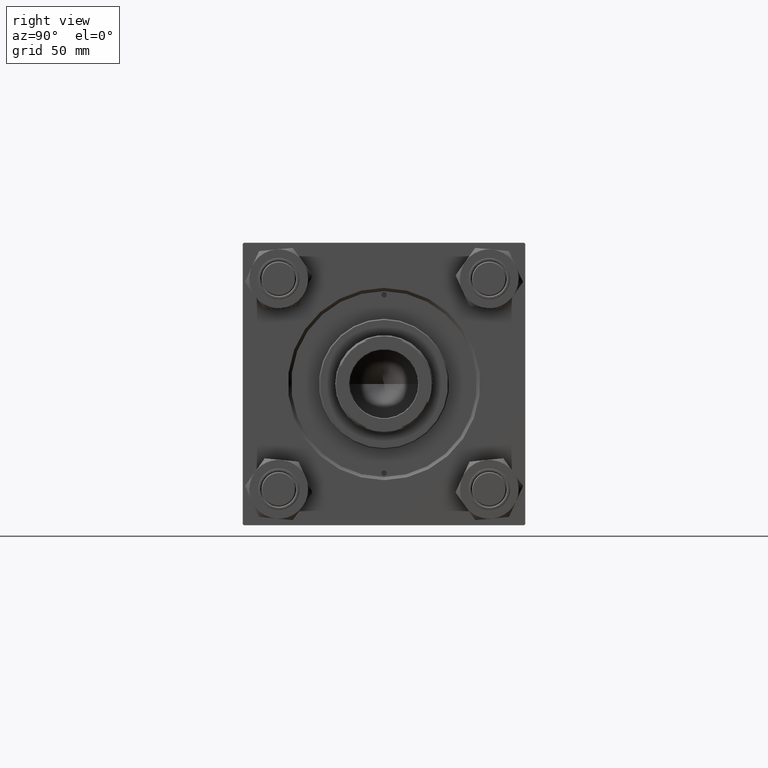
[diagram: clean part render]
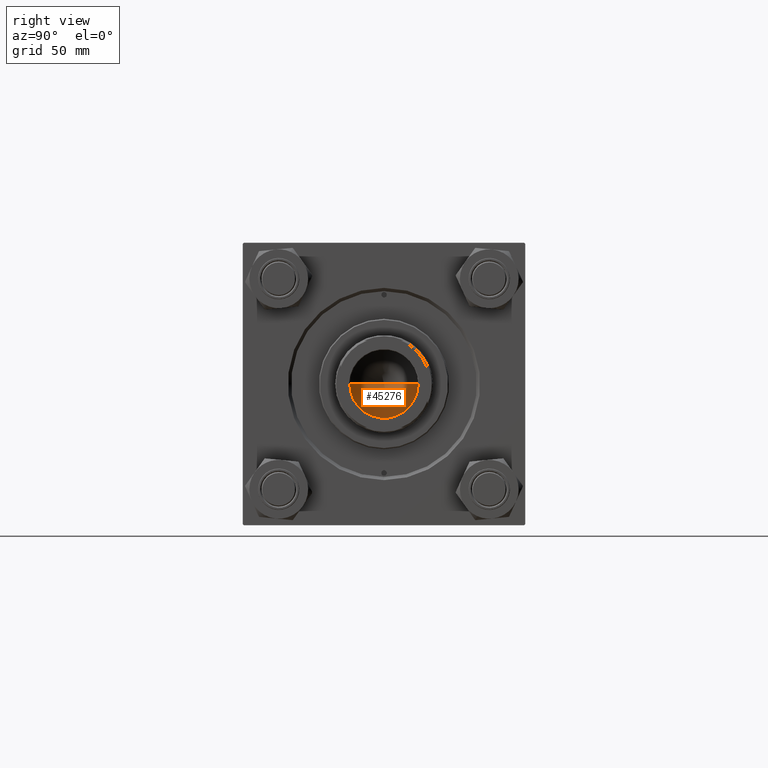
[diagram: same view with one face highlighted and labeled with its STEP entity id]
A machine part, right view. The second image highlights one B-rep face of the part: STEP entity #45276.
In plain terms, the highlighted conical surface has half-angle 59 deg.
Its self-contained STEP definition (entity closure, byte-faithful):
#3131 = AXIS2_PLACEMENT_3D ( 'NONE', #25063, #12844, #43719 ) ;
#4591 = VECTOR ( 'NONE', #36839, 1000.000000000000000 ) ;
#4626 = CARTESIAN_POINT ( 'NONE',  ( 0.000000000000000000, 0.000000000000000000, 123.0000000000000142 ) ) ;
#9648 = CIRCLE ( 'NONE', #3131, 15.74999999999998934 ) ;
#12109 = CARTESIAN_POINT ( 'NONE',  ( 15.74999999999998934, 0.000000000000000000, 123.0000000000000142 ) ) ;
#12844 = DIRECTION ( 'NONE',  ( -0.000000000000000000, -0.000000000000000000, 1.000000000000000000 ) ) ;
#13032 = DIRECTION ( 'NONE',  ( -0.000000000000000000, -0.000000000000000000, 1.000000000000000000 ) ) ;
#15042 = EDGE_CURVE ( 'NONE', #40848, #37779, #49433, .T. ) ;
#17359 = EDGE_LOOP ( 'NONE', ( #17430, #50411, #38586 ) ) ;
#17430 = ORIENTED_EDGE ( 'NONE', *, *, #15042, .F. ) ;
#19127 = CONICAL_SURFACE ( 'NONE', #20657, 15.74999999999998934, 1.029744258676652979 ) ;
#19271 = VERTEX_POINT ( 'NONE', #12109 ) ;
#19472 = EDGE_CURVE ( 'NONE', #40848, #19271, #49595, .T. ) ;
#20657 = AXIS2_PLACEMENT_3D ( 'NONE', #4626, #13032, #35751 ) ;
#22365 = DIRECTION ( 'NONE',  ( -0.8571673007021115565, 1.049727191138617710E-16, 0.5150380749100554878 ) ) ;
#25063 = CARTESIAN_POINT ( 'NONE',  ( 0.000000000000000000, 0.000000000000000000, 123.0000000000000142 ) ) ;
#25359 = CARTESIAN_POINT ( 'NONE',  ( -15.74999999999998934, 1.928818708657080161E-15, 123.0000000000000142 ) ) ;
#28333 = FACE_OUTER_BOUND ( 'NONE', #17359, .T. ) ;
#28353 = EDGE_CURVE ( 'NONE', #19271, #37779, #9648, .T. ) ;
#30516 = VECTOR ( 'NONE', #22365, 1000.000000000000000 ) ;
#32448 = CARTESIAN_POINT ( 'NONE',  ( -1.584115414415908206E-14, 0.000000000000000000, 113.5364452503159214 ) ) ;
#33009 = CARTESIAN_POINT ( 'NONE',  ( 15.74999999999998934, 0.000000000000000000, 123.0000000000000142 ) ) ;
#35751 = DIRECTION ( 'NONE',  ( 1.000000000000000000, 0.000000000000000000, 0.000000000000000000 ) ) ;
#36839 = DIRECTION ( 'NONE',  ( 0.8571673007021115565, 0.000000000000000000, 0.5150380749100554878 ) ) ;
#37779 = VERTEX_POINT ( 'NONE', #25359 ) ;
#38586 = ORIENTED_EDGE ( 'NONE', *, *, #28353, .T. ) ;
#40848 = VERTEX_POINT ( 'NONE', #32448 ) ;
#43719 = DIRECTION ( 'NONE',  ( 1.000000000000000000, 0.000000000000000000, 0.000000000000000000 ) ) ;
#45276 = ADVANCED_FACE ( 'NONE', ( #28333 ), #19127, .F. ) ;
#49433 = LINE ( 'NONE', #50192, #30516 ) ;
#49595 = LINE ( 'NONE', #33009, #4591 ) ;
#50192 = CARTESIAN_POINT ( 'NONE',  ( -15.74999999999998934, 1.928818708657080161E-15, 123.0000000000000142 ) ) ;
#50411 = ORIENTED_EDGE ( 'NONE', *, *, #19472, .T. ) ;